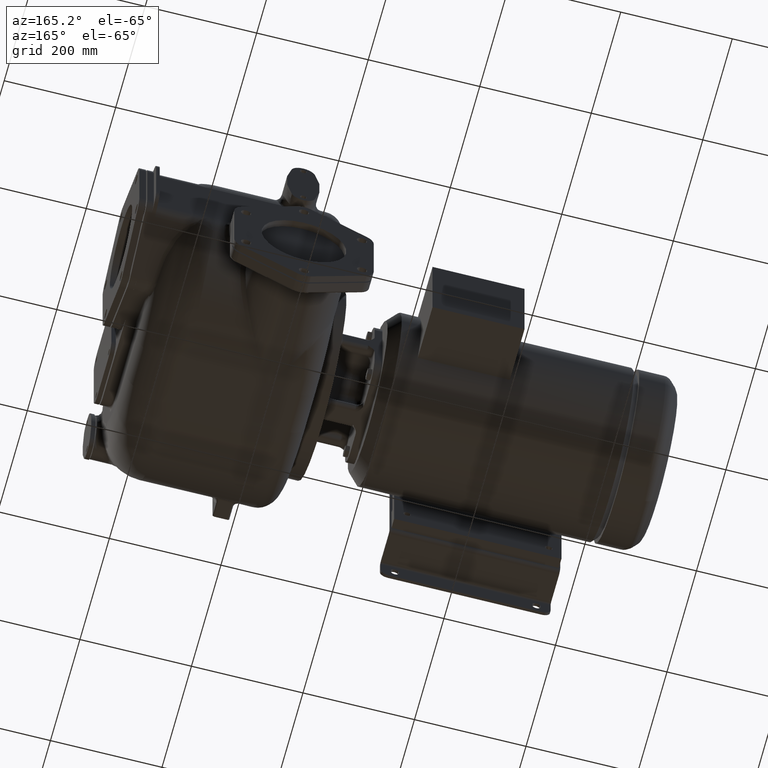
[diagram: clean part render]
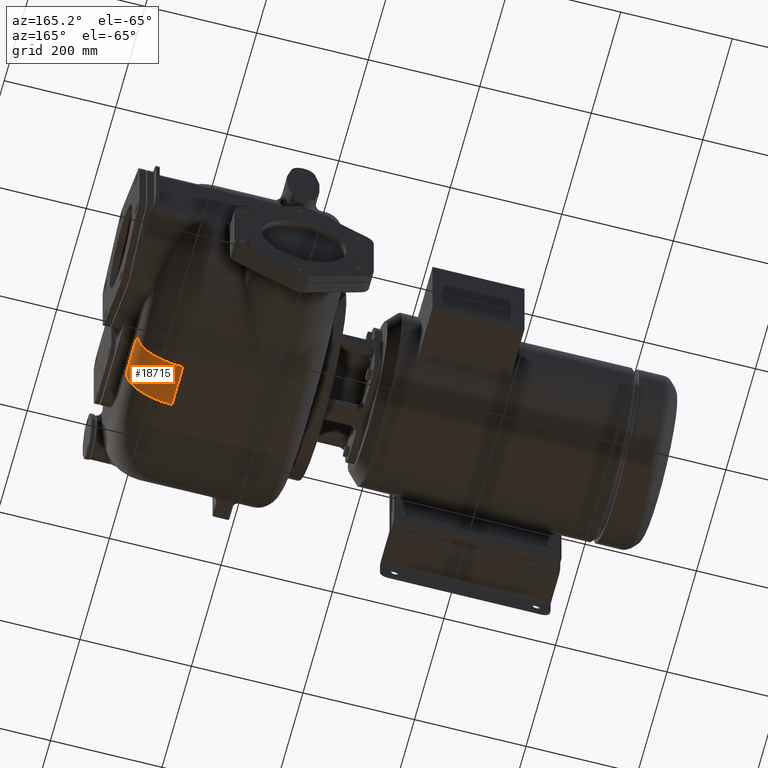
[diagram: same view with one face highlighted and labeled with its STEP entity id]
A machine part, auxiliary view. The second image highlights one B-rep face of the part: STEP entity #18715.
In plain terms, the highlighted cylindrical surface (partial cylindrical patch) has radius 82 mm, axis along (0, 1, 0).
Its self-contained STEP definition (entity closure, byte-faithful):
#3229=DIRECTION('',(0.E0,1.E0,0.E0));
#3230=VECTOR('',#3229,7.4E1);
#3231=CARTESIAN_POINT('',(2.34E2,2.43E2,-1.7E2));
#3232=LINE('',#3231,#3230);
#4846=DIRECTION('',(0.E0,1.E0,0.E0));
#4847=VECTOR('',#4846,7.399999999968E1);
#4848=CARTESIAN_POINT('',(1.52E2,2.430000000001E2,-2.52E2));
#4849=LINE('',#4848,#4847);
#4962=CARTESIAN_POINT('',(1.52E2,2.43E2,-1.7E2));
#4963=DIRECTION('',(0.E0,1.E0,0.E0));
#4964=DIRECTION('',(1.E0,0.E0,0.E0));
#4965=AXIS2_PLACEMENT_3D('',#4962,#4963,#4964);
#5006=CARTESIAN_POINT('',(1.52E2,3.17E2,-1.7E2));
#5007=DIRECTION('',(0.E0,1.E0,0.E0));
#5008=DIRECTION('',(1.E0,0.E0,0.E0));
#5009=AXIS2_PLACEMENT_3D('',#5006,#5007,#5008);
#12470=CARTESIAN_POINT('',(1.52E2,2.430000000001E2,-2.52E2));
#12472=VERTEX_POINT('',#12470);
#12565=CARTESIAN_POINT('',(2.34E2,2.43E2,-1.7E2));
#12566=CARTESIAN_POINT('',(2.34E2,3.17E2,-1.7E2));
#12567=VERTEX_POINT('',#12565);
#12568=VERTEX_POINT('',#12566);
#12569=CARTESIAN_POINT('',(1.52E2,3.169999999997E2,-2.52E2));
#12570=VERTEX_POINT('',#12569);
#18703=CARTESIAN_POINT('',(1.52E2,2.413109710277E2,-1.7E2));
#18704=DIRECTION('',(0.E0,1.E0,0.E0));
#18705=DIRECTION('',(1.E0,0.E0,0.E0));
#18706=AXIS2_PLACEMENT_3D('',#18703,#18704,#18705);
#18707=CYLINDRICAL_SURFACE('',#18706,8.2E1);
#18708=ORIENTED_EDGE('',*,*,#17343,.T.);
#18710=ORIENTED_EDGE('',*,*,#18709,.T.);
#18711=ORIENTED_EDGE('',*,*,#18530,.F.);
#18712=ORIENTED_EDGE('',*,*,#16666,.F.);
#18713=EDGE_LOOP('',(#18708,#18710,#18711,#18712));
#18714=FACE_OUTER_BOUND('',#18713,.F.);
#18715=ADVANCED_FACE('',(#18714),#18707,.T.);
#4966=CIRCLE('',#4965,8.2E1);
#5010=CIRCLE('',#5009,8.2E1);
#16666=EDGE_CURVE('',#12567,#12472,#4966,.T.);
#17343=EDGE_CURVE('',#12567,#12568,#3232,.T.);
#18530=EDGE_CURVE('',#12472,#12570,#4849,.T.);
#18709=EDGE_CURVE('',#12568,#12570,#5010,.T.);